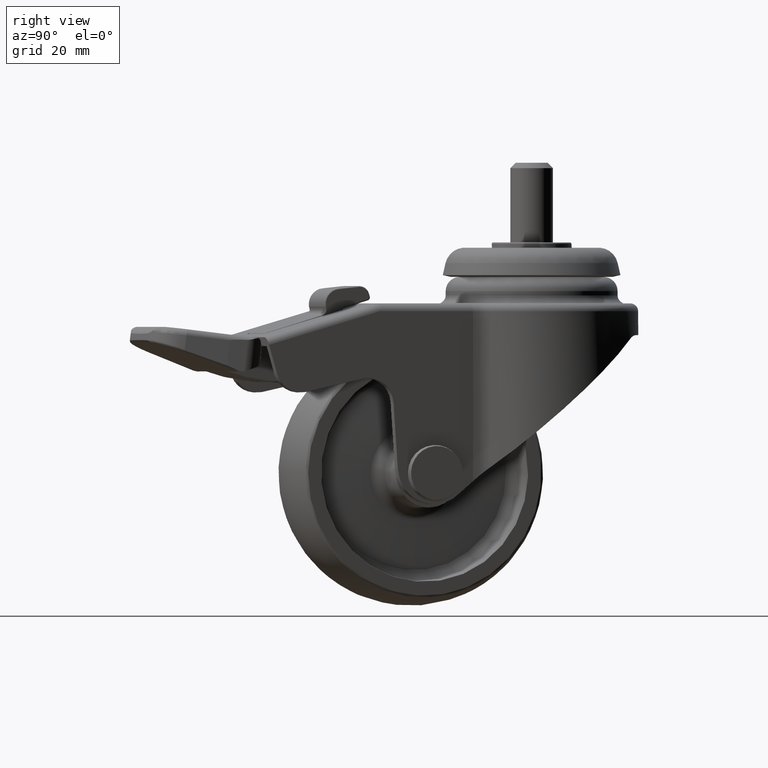
[diagram: clean part render]
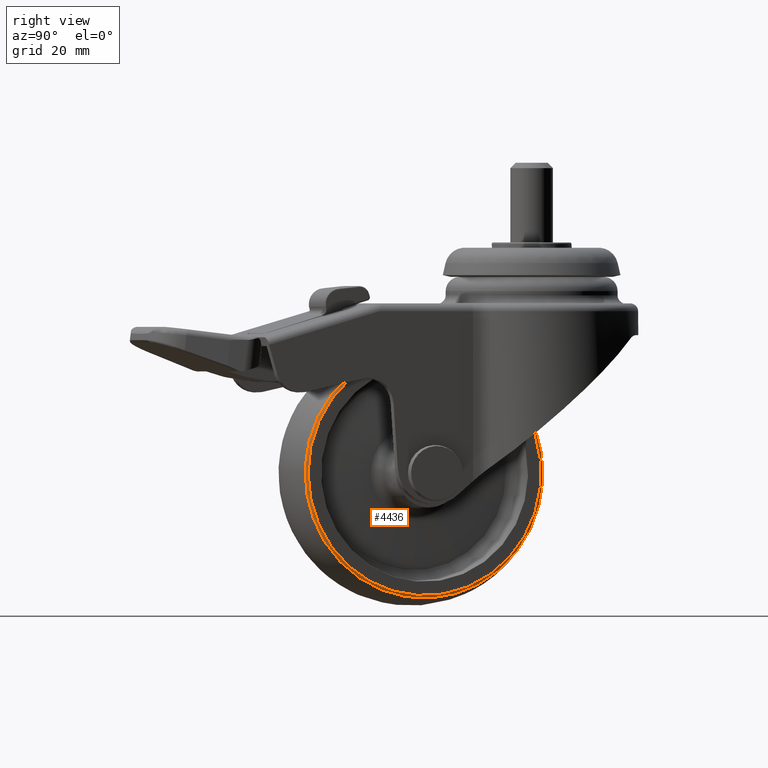
[diagram: same view with one face highlighted and labeled with its STEP entity id]
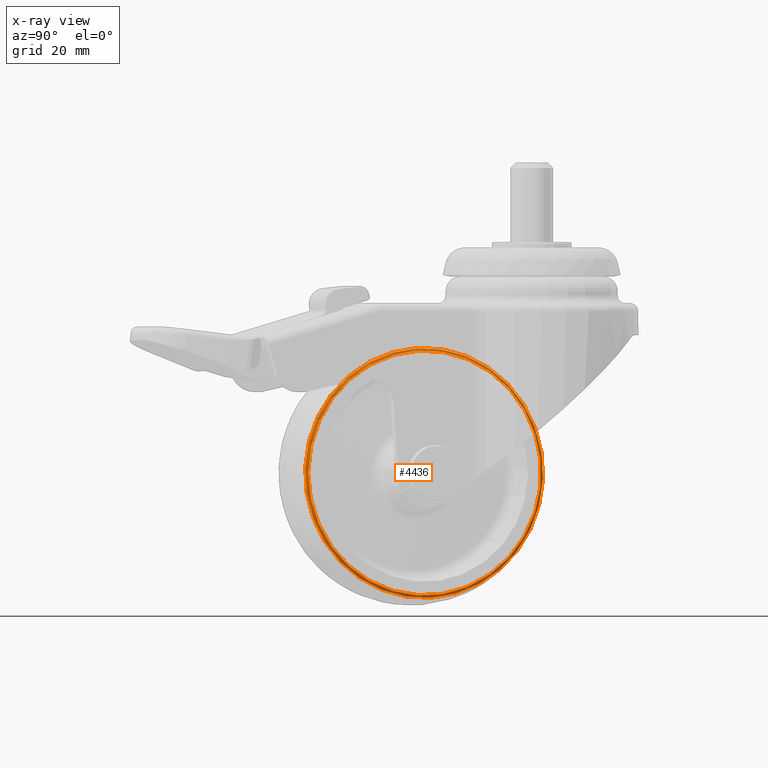
[diagram: x-ray of the same camera — body ghosted, the highlighted face saturated]
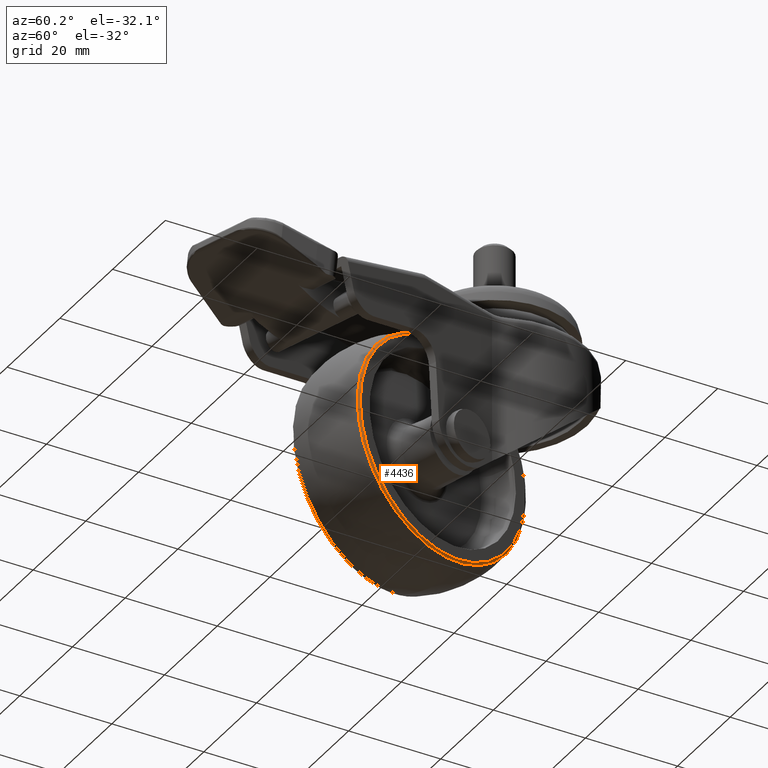
[diagram: same view with one face highlighted and labeled with its STEP entity id]
A machine part, right view. The second image highlights one B-rep face of the part: STEP entity #4436.
The next image is the same camera in x-ray: the body ghosted, the highlighted face saturated — about 0% of this face is hidden behind the body in this view.
A second angle (auxiliary view) of the same face is appended — the face is thin or edge-on in the first view.
In plain terms, the highlighted toroidal blend (fillet) surface has major radius 23.0964 mm and minor (blend) radius 0.5 mm.
Its self-contained STEP definition (entity closure, byte-faithful):
#1049=FACE_BOUND('',#1467,.T.);
#1133=TOROIDAL_SURFACE('',#4737,23.0963797939844,0.499999999999998);
#1175=FACE_OUTER_BOUND('',#1466,.T.);
#1466=EDGE_LOOP('',(#3134));
#1467=EDGE_LOOP('',(#3135,#3136));
#1845=CIRCLE('',#4733,23.5665155342819);
#1848=CIRCLE('',#4736,23.5665155342819);
#1849=CIRCLE('',#4738,23.0963797939844);
#2039=VERTEX_POINT('',#6520);
#2040=VERTEX_POINT('',#6521);
#2043=VERTEX_POINT('',#6532);
#2479=EDGE_CURVE('',#2039,#2040,#1845,.T.);
#2483=EDGE_CURVE('',#2040,#2039,#1848,.T.);
#2484=EDGE_CURVE('',#2043,#2043,#1849,.T.);
#3134=ORIENTED_EDGE('',*,*,#2484,.T.);
#3135=ORIENTED_EDGE('',*,*,#2479,.F.);
#3136=ORIENTED_EDGE('',*,*,#2483,.F.);
#4436=ADVANCED_FACE('',(#1175,#1049),#1133,.T.);
#4733=AXIS2_PLACEMENT_3D('',#6522,#5222,#5223);
#4736=AXIS2_PLACEMENT_3D('',#6530,#5228,#5229);
#4737=AXIS2_PLACEMENT_3D('',#6531,#5230,#5231);
#4738=AXIS2_PLACEMENT_3D('',#6533,#5232,#5233);
#5222=DIRECTION('center_axis',(1.,0.,0.));
#5223=DIRECTION('ref_axis',(0.,0.,1.));
#5228=DIRECTION('center_axis',(1.,0.,0.));
#5229=DIRECTION('ref_axis',(0.,0.,1.));
#5230=DIRECTION('center_axis',(-1.,0.,0.));
#5231=DIRECTION('ref_axis',(0.,0.,1.));
#5232=DIRECTION('center_axis',(1.,3.84553089108562E-16,0.));
#5233=DIRECTION('ref_axis',(0.,1.92276544554281E-16,-1.));
#6520=CARTESIAN_POINT('',(45.6185242173159,-14.575772836765,23.5665155342819));
#6521=CARTESIAN_POINT('',(45.6185242168659,-14.5757728366295,-23.566515534118));
#6522=CARTESIAN_POINT('Origin',(45.6185242173159,-14.575772836765,0.));
#6530=CARTESIAN_POINT('Origin',(45.6185242173159,-14.575772836765,0.));
#6531=CARTESIAN_POINT('Origin',(45.7887369832733,-14.575772836765,-4.85722573273506E-15));
#6532=CARTESIAN_POINT('',(45.2887369832733,-14.575772836765,23.0963797939844));
#6533=CARTESIAN_POINT('Origin',(45.2887369832733,-14.575772836765,4.44089209850063E-15));